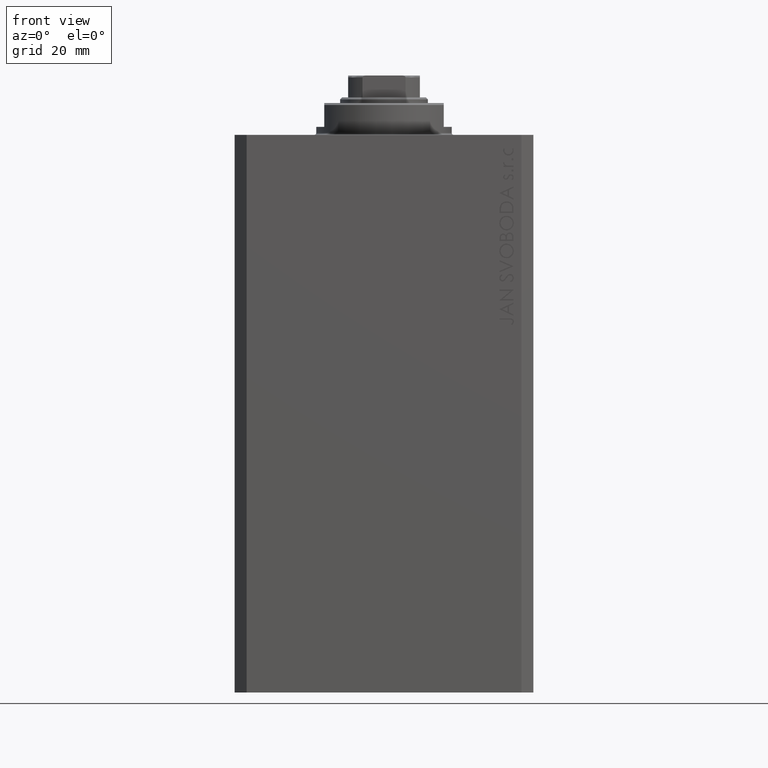
[diagram: clean part render]
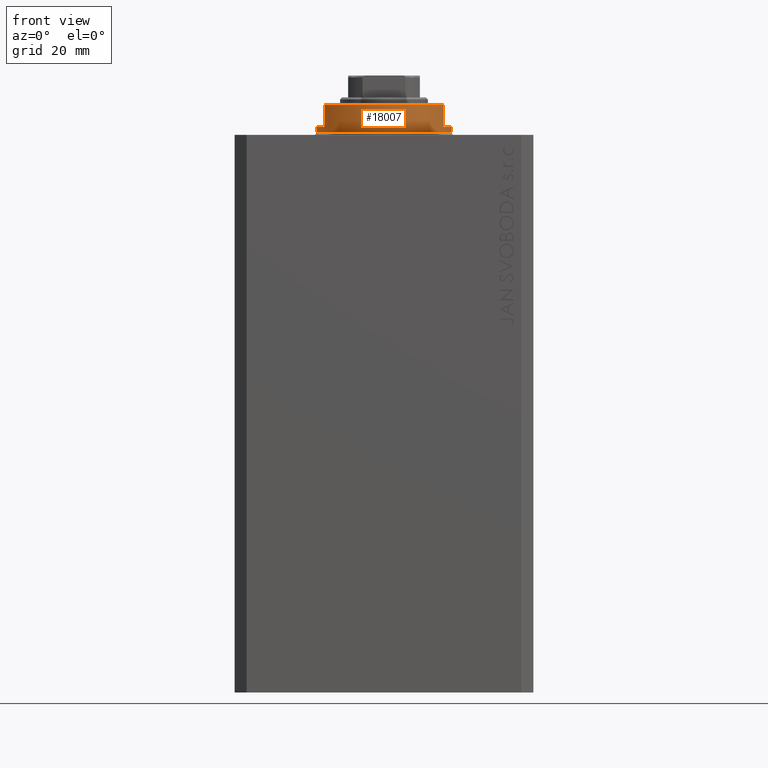
[diagram: same view with one face highlighted and labeled with its STEP entity id]
A machine part, front view. The second image highlights one B-rep face of the part: STEP entity #18007.
In plain terms, the highlighted cylindrical surface (partial cylindrical patch) has radius 17 mm, axis along (0, 0, -1).
Its self-contained STEP definition (entity closure, byte-faithful):
#1743 = EDGE_CURVE ( 'NONE', #2886, #33874, #36056, .T. ) ;
#2369 = CARTESIAN_POINT ( 'NONE',  ( 14.99999999999999645, -8.000000000000003553, -2.000000000000000000 ) ) ;
#2378 = LINE ( 'NONE', #28148, #38679 ) ;
#2886 = VERTEX_POINT ( 'NONE', #2369 ) ;
#3255 = EDGE_CURVE ( 'NONE', #46317, #45844, #18742, .T. ) ;
#3300 = EDGE_LOOP ( 'NONE', ( #42520, #16841, #22974, #35109, #17132, #4459, #46818, #16928 ) ) ;
#4459 = ORIENTED_EDGE ( 'NONE', *, *, #14319, .F. ) ;
#4859 = EDGE_CURVE ( 'NONE', #45844, #33874, #30839, .T. ) ;
#6557 = VERTEX_POINT ( 'NONE', #43395 ) ;
#8160 = CARTESIAN_POINT ( 'NONE',  ( -17.00000000000000000, 2.081899558550500280E-15, -2.000000000000000000 ) ) ;
#8306 = DIRECTION ( 'NONE',  ( -1.000000000000000000, 0.000000000000000000, 0.000000000000000000 ) ) ;
#8593 = CARTESIAN_POINT ( 'NONE',  ( -14.99999999999999645, -8.000000000000003553, -2.000000000000000000 ) ) ;
#9525 = DIRECTION ( 'NONE',  ( -0.000000000000000000, -0.000000000000000000, 1.000000000000000000 ) ) ;
#10178 = CARTESIAN_POINT ( 'NONE',  ( 0.000000000000000000, 0.000000000000000000, -2.000000000000000000 ) ) ;
#10249 = AXIS2_PLACEMENT_3D ( 'NONE', #11644, #34094, #8306 ) ;
#10541 = DIRECTION ( 'NONE',  ( -1.000000000000000000, 0.000000000000000000, 0.000000000000000000 ) ) ;
#11644 = CARTESIAN_POINT ( 'NONE',  ( 0.000000000000000000, 0.000000000000000000, -7.500000000000013323 ) ) ;
#12962 = CYLINDRICAL_SURFACE ( 'NONE', #39685, 17.00000000000000000 ) ;
#13147 = EDGE_CURVE ( 'NONE', #6557, #34863, #28142, .T. ) ;
#14132 = VECTOR ( 'NONE', #15164, 1000.000000000000000 ) ;
#14319 = EDGE_CURVE ( 'NONE', #6557, #2886, #29609, .T. ) ;
#14545 = DIRECTION ( 'NONE',  ( 0.000000000000000000, 0.000000000000000000, -1.000000000000000000 ) ) ;
#15164 = DIRECTION ( 'NONE',  ( 0.000000000000000000, 0.000000000000000000, -1.000000000000000000 ) ) ;
#16841 = ORIENTED_EDGE ( 'NONE', *, *, #46649, .F. ) ;
#16928 = ORIENTED_EDGE ( 'NONE', *, *, #44959, .T. ) ;
#17132 = ORIENTED_EDGE ( 'NONE', *, *, #1743, .F. ) ;
#17981 = CARTESIAN_POINT ( 'NONE',  ( -15.00000000000000000, -8.000000000000001776, -7.500000000000014211 ) ) ;
#18007 = ADVANCED_FACE ( 'NONE', ( #23712 ), #12962, .T. ) ;
#18742 = LINE ( 'NONE', #33319, #14132 ) ;
#22708 = CARTESIAN_POINT ( 'NONE',  ( 17.00000000000000000, 0.000000000000000000, -0.5000000000000004441 ) ) ;
#22974 = ORIENTED_EDGE ( 'NONE', *, *, #3255, .T. ) ;
#23712 = FACE_OUTER_BOUND ( 'NONE', #3300, .T. ) ;
#23945 = CARTESIAN_POINT ( 'NONE',  ( 0.000000000000000000, 0.000000000000000000, -8.000000000000000000 ) ) ;
#24410 = DIRECTION ( 'NONE',  ( 1.000000000000000000, 0.000000000000000000, 0.000000000000000000 ) ) ;
#25029 = AXIS2_PLACEMENT_3D ( 'NONE', #46850, #47095, #10541 ) ;
#26497 = VERTEX_POINT ( 'NONE', #8160 ) ;
#28142 = LINE ( 'NONE', #45603, #33393 ) ;
#28148 = CARTESIAN_POINT ( 'NONE',  ( -17.00000000000000000, 2.081899558550500280E-15, -8.000000000000000000 ) ) ;
#29609 = CIRCLE ( 'NONE', #25029, 17.00000000000000000 ) ;
#30297 = CIRCLE ( 'NONE', #43260, 17.00000000000000000 ) ;
#30336 = AXIS2_PLACEMENT_3D ( 'NONE', #10178, #35033, #31678 ) ;
#30839 = CIRCLE ( 'NONE', #10249, 17.00000000000000000 ) ;
#31678 = DIRECTION ( 'NONE',  ( -1.000000000000000000, 0.000000000000000000, 0.000000000000000000 ) ) ;
#33319 = CARTESIAN_POINT ( 'NONE',  ( -15.00000000000000000, -8.000000000000001776, -8.000000000000000000 ) ) ;
#33393 = VECTOR ( 'NONE', #9525, 1000.000000000000000 ) ;
#33874 = VERTEX_POINT ( 'NONE', #43169 ) ;
#34094 = DIRECTION ( 'NONE',  ( 0.000000000000000000, 0.000000000000000000, 1.000000000000000000 ) ) ;
#34863 = VERTEX_POINT ( 'NONE', #22708 ) ;
#35033 = DIRECTION ( 'NONE',  ( 0.000000000000000000, 0.000000000000000000, -1.000000000000000000 ) ) ;
#35109 = ORIENTED_EDGE ( 'NONE', *, *, #4859, .T. ) ;
#36056 = LINE ( 'NONE', #39863, #41521 ) ;
#37692 = VERTEX_POINT ( 'NONE', #39861 ) ;
#38679 = VECTOR ( 'NONE', #39135, 1000.000000000000000 ) ;
#39135 = DIRECTION ( 'NONE',  ( -0.000000000000000000, -0.000000000000000000, 1.000000000000000000 ) ) ;
#39190 = DIRECTION ( 'NONE',  ( 1.000000000000000000, 0.000000000000000000, 0.000000000000000000 ) ) ;
#39685 = AXIS2_PLACEMENT_3D ( 'NONE', #23945, #45231, #24410 ) ;
#39861 = CARTESIAN_POINT ( 'NONE',  ( -17.00000000000000000, 2.081899558550500280E-15, -0.5000000000000004441 ) ) ;
#39863 = CARTESIAN_POINT ( 'NONE',  ( 15.00000000000000000, -8.000000000000001776, -8.000000000000000000 ) ) ;
#41521 = VECTOR ( 'NONE', #14545, 1000.000000000000000 ) ;
#41785 = CIRCLE ( 'NONE', #30336, 17.00000000000000000 ) ;
#42520 = ORIENTED_EDGE ( 'NONE', *, *, #45175, .F. ) ;
#43169 = CARTESIAN_POINT ( 'NONE',  ( 15.00000000000000000, -8.000000000000001776, -7.500000000000013323 ) ) ;
#43260 = AXIS2_PLACEMENT_3D ( 'NONE', #47088, #43498, #39190 ) ;
#43395 = CARTESIAN_POINT ( 'NONE',  ( 17.00000000000000000, 0.000000000000000000, -2.000000000000000000 ) ) ;
#43498 = DIRECTION ( 'NONE',  ( -0.000000000000000000, -0.000000000000000000, -1.000000000000000000 ) ) ;
#44959 = EDGE_CURVE ( 'NONE', #34863, #37692, #30297, .T. ) ;
#45175 = EDGE_CURVE ( 'NONE', #26497, #37692, #2378, .T. ) ;
#45231 = DIRECTION ( 'NONE',  ( -0.000000000000000000, -0.000000000000000000, 1.000000000000000000 ) ) ;
#45603 = CARTESIAN_POINT ( 'NONE',  ( 17.00000000000000000, 0.000000000000000000, -8.000000000000000000 ) ) ;
#45844 = VERTEX_POINT ( 'NONE', #17981 ) ;
#46317 = VERTEX_POINT ( 'NONE', #8593 ) ;
#46649 = EDGE_CURVE ( 'NONE', #46317, #26497, #41785, .T. ) ;
#46818 = ORIENTED_EDGE ( 'NONE', *, *, #13147, .T. ) ;
#46850 = CARTESIAN_POINT ( 'NONE',  ( 0.000000000000000000, 0.000000000000000000, -2.000000000000000000 ) ) ;
#47088 = CARTESIAN_POINT ( 'NONE',  ( 0.000000000000000000, 0.000000000000000000, -0.5000000000000004441 ) ) ;
#47095 = DIRECTION ( 'NONE',  ( 0.000000000000000000, 0.000000000000000000, -1.000000000000000000 ) ) ;